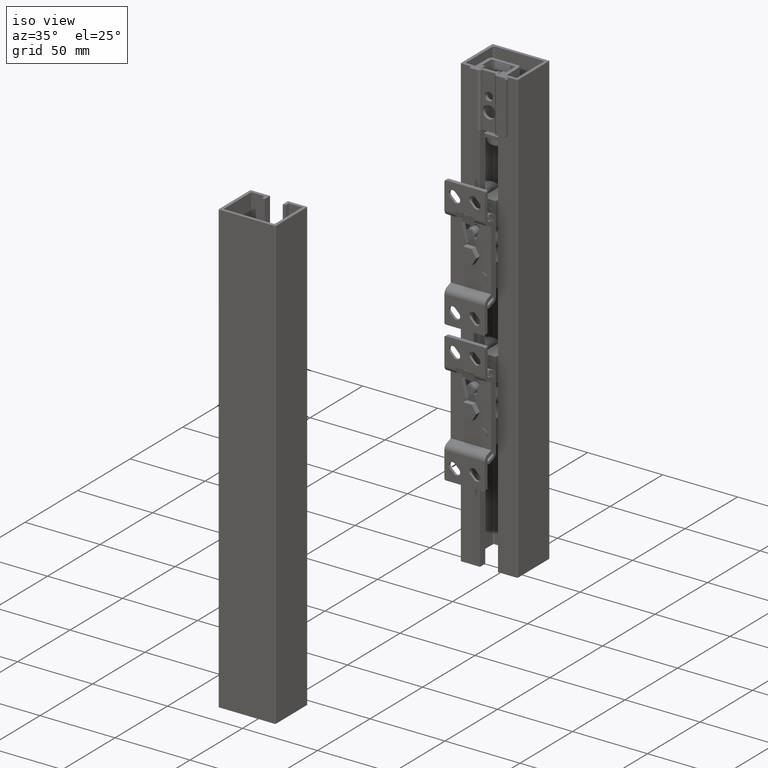
[diagram: clean part render]
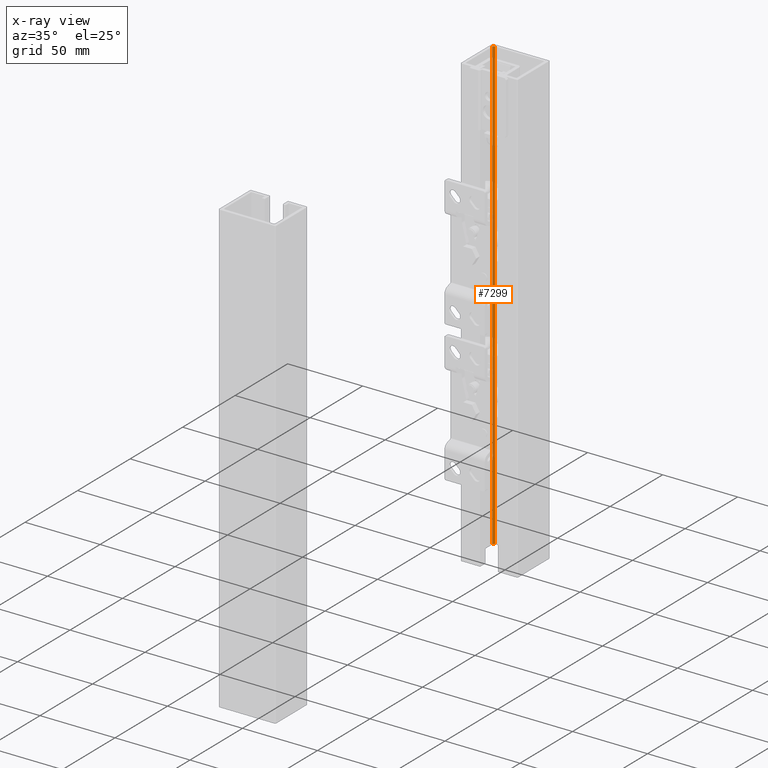
[diagram: x-ray — body ghosted, one internal face saturated and labeled with its STEP entity id]
A machine part, iso view, then the same camera in x-ray: the body is ghosted and one INTERNAL B-rep face — a face not visible from any outside direction — is saturated and labeled: STEP entity #7299.
In plain terms, the highlighted cylindrical surface (edge-blend (fillet) strip) has radius 1 mm, axis along (0, 0, 1).
Its self-contained STEP definition (entity closure, byte-faithful):
#539=FACE_OUTER_BOUND('',#980,.T.);
#980=EDGE_LOOP('',(#5048,#5049,#5050,#5051));
#1561=LINE('',#10879,#2248);
#1562=LINE('',#10882,#2249);
#2248=VECTOR('',#8578,300.);
#2249=VECTOR('',#8581,300.);
#2932=CIRCLE('',#7759,1.);
#2933=CIRCLE('',#7760,1.);
#3266=VERTEX_POINT('',#10875);
#3267=VERTEX_POINT('',#10876);
#3268=VERTEX_POINT('',#10878);
#3269=VERTEX_POINT('',#10880);
#3997=EDGE_CURVE('',#3266,#3267,#2932,.T.);
#3998=EDGE_CURVE('',#3267,#3268,#1561,.T.);
#3999=EDGE_CURVE('',#3268,#3269,#2933,.T.);
#4000=EDGE_CURVE('',#3269,#3266,#1562,.T.);
#5048=ORIENTED_EDGE('',*,*,#3997,.T.);
#5049=ORIENTED_EDGE('',*,*,#3998,.T.);
#5050=ORIENTED_EDGE('',*,*,#3999,.T.);
#5051=ORIENTED_EDGE('',*,*,#4000,.T.);
#7141=CYLINDRICAL_SURFACE('',#7758,1.);
#7299=ADVANCED_FACE('',(#539),#7141,.F.);
#7758=AXIS2_PLACEMENT_3D('',#10874,#8574,#8575);
#7759=AXIS2_PLACEMENT_3D('',#10877,#8576,#8577);
#7760=AXIS2_PLACEMENT_3D('',#10881,#8579,#8580);
#8574=DIRECTION('center_axis',(0.,0.,1.));
#8575=DIRECTION('ref_axis',(-0.707106781186549,0.707106781186546,0.));
#8576=DIRECTION('center_axis',(0.,0.,-1.));
#8577=DIRECTION('ref_axis',(-0.707106781186549,0.707106781186546,0.));
#8578=DIRECTION('',(0.,0.,1.));
#8579=DIRECTION('center_axis',(0.,0.,1.));
#8580=DIRECTION('ref_axis',(-0.707106781186549,0.707106781186546,0.));
#8581=DIRECTION('',(0.,0.,-1.));
#10874=CARTESIAN_POINT('Origin',(-16.,12.25,0.));
#10875=CARTESIAN_POINT('',(-17.,12.25,-150.));
#10876=CARTESIAN_POINT('',(-16.,13.25,-150.));
#10877=CARTESIAN_POINT('Origin',(-16.,12.25,-150.));
#10878=CARTESIAN_POINT('',(-16.,13.25,150.));
#10879=CARTESIAN_POINT('',(-16.,13.25,0.));
#10880=CARTESIAN_POINT('',(-17.,12.25,150.));
#10881=CARTESIAN_POINT('Origin',(-16.,12.25,150.));
#10882=CARTESIAN_POINT('',(-17.,12.25,0.));